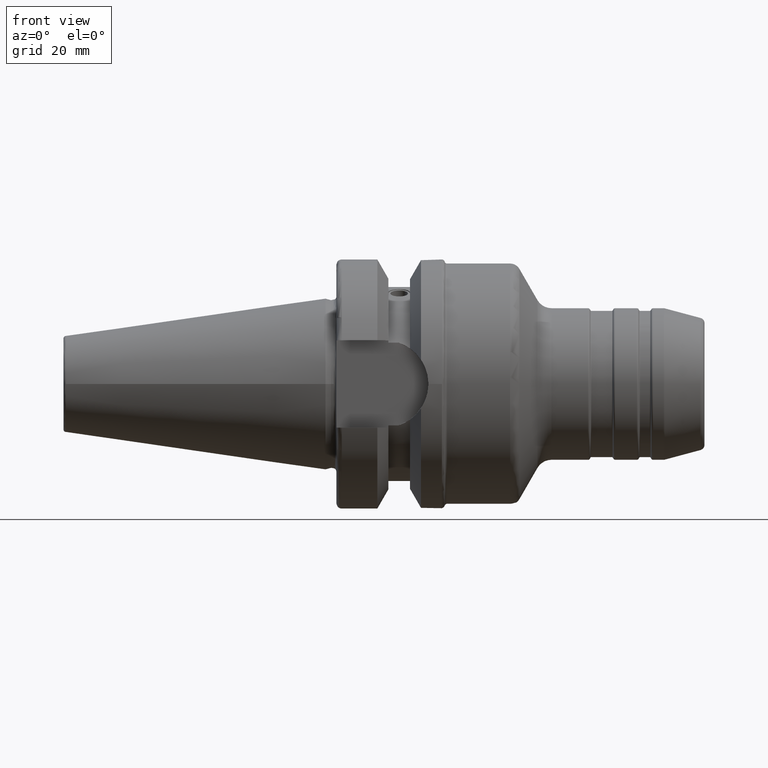
[diagram: clean part render]
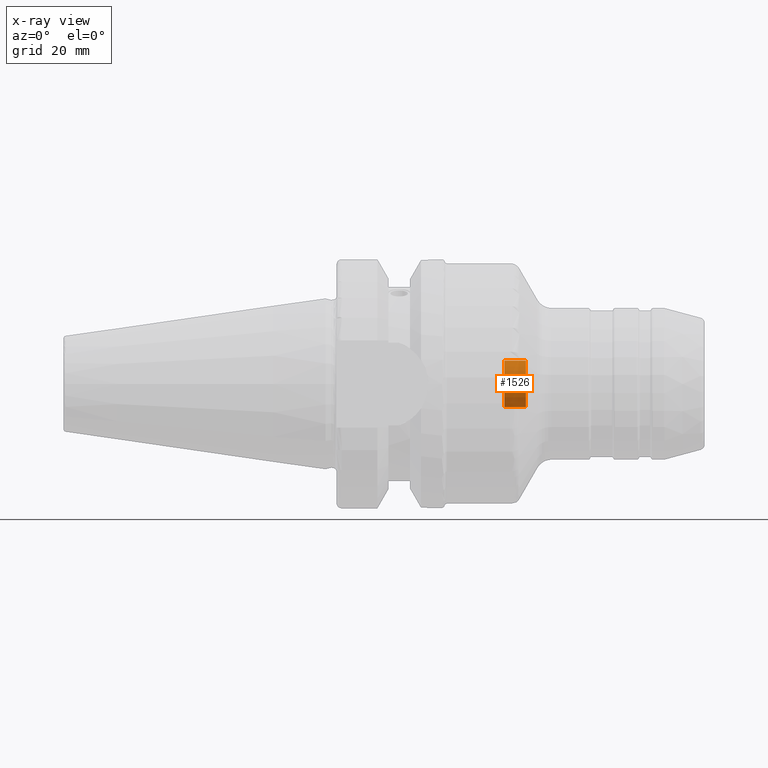
[diagram: x-ray — body ghosted, one internal face saturated and labeled with its STEP entity id]
A machine part, front view, then the same camera in x-ray: the body is ghosted and one INTERNAL B-rep face — a face not visible from any outside direction — is saturated and labeled: STEP entity #1526.
In plain terms, the highlighted cylindrical surface (bore or boss wall) has radius 4.3 mm, axis along (1, 0, 0).
Its self-contained STEP definition (entity closure, byte-faithful):
#135=LINE('',#2577,#210);
#210=VECTOR('',#2013,4.29999999999998);
#277=CYLINDRICAL_SURFACE('',#1691,4.29999999999998);
#338=FACE_OUTER_BOUND('',#436,.T.);
#436=EDGE_LOOP('',(#1130,#1131,#1132,#1133));
#554=CIRCLE('',#1690,4.29999999999998);
#555=CIRCLE('',#1692,4.29999999999998);
#655=VERTEX_POINT('',#2573);
#656=VERTEX_POINT('',#2576);
#831=EDGE_CURVE('',#655,#655,#554,.T.);
#832=EDGE_CURVE('',#655,#656,#135,.T.);
#833=EDGE_CURVE('',#656,#656,#555,.T.);
#1130=ORIENTED_EDGE('',*,*,#831,.T.);
#1131=ORIENTED_EDGE('',*,*,#832,.T.);
#1132=ORIENTED_EDGE('',*,*,#833,.F.);
#1133=ORIENTED_EDGE('',*,*,#832,.F.);
#1526=ADVANCED_FACE('',(#338),#277,.F.);
#1690=AXIS2_PLACEMENT_3D('',#2574,#2009,#2010);
#1691=AXIS2_PLACEMENT_3D('',#2575,#2011,#2012);
#1692=AXIS2_PLACEMENT_3D('',#2578,#2014,#2015);
#2009=DIRECTION('center_axis',(1.,0.,0.));
#2010=DIRECTION('ref_axis',(0.,0.,-1.));
#2011=DIRECTION('center_axis',(1.,0.,0.));
#2012=DIRECTION('ref_axis',(0.,0.,-1.));
#2013=DIRECTION('',(-1.,0.,0.));
#2014=DIRECTION('center_axis',(1.,0.,0.));
#2015=DIRECTION('ref_axis',(0.,0.,-1.));
#2573=CARTESIAN_POINT('',(37.,-5.2659812363336E-16,4.29999999999998));
#2574=CARTESIAN_POINT('Origin',(37.,0.,0.));
#2575=CARTESIAN_POINT('Origin',(35.,0.,0.));
#2576=CARTESIAN_POINT('',(33.,-5.2659812363336E-16,4.29999999999998));
#2577=CARTESIAN_POINT('',(35.,-5.2659812363336E-16,4.29999999999998));
#2578=CARTESIAN_POINT('Origin',(33.,0.,0.));